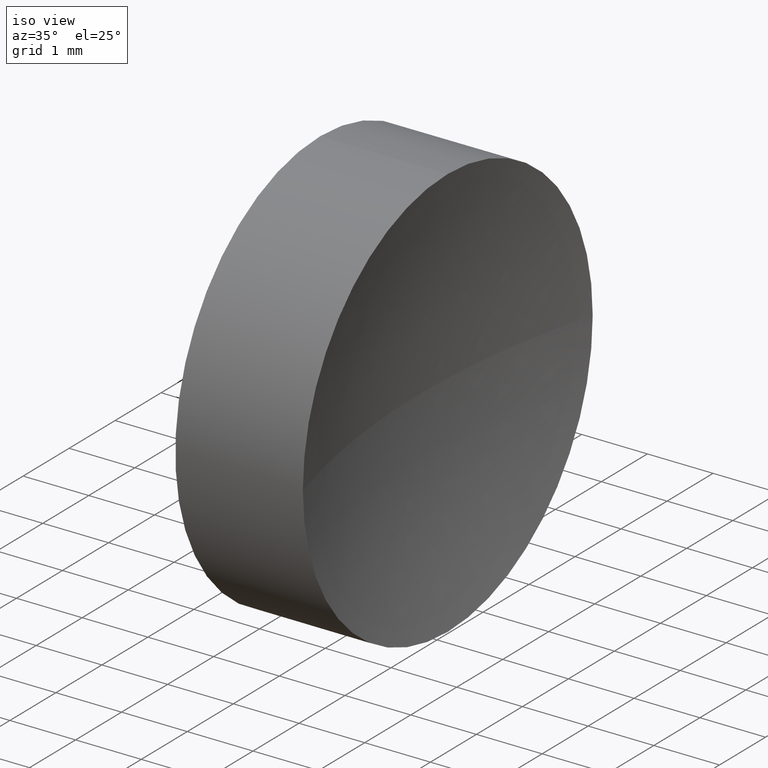
[diagram: clean part render]
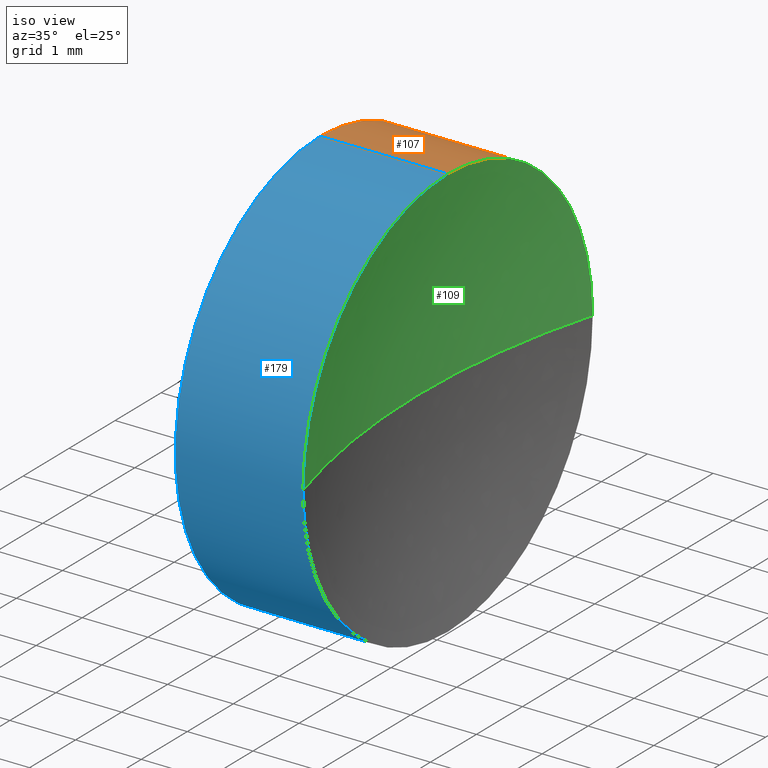
[diagram: same view with three faces highlighted in distinct colors, each labeled with its STEP entity id]
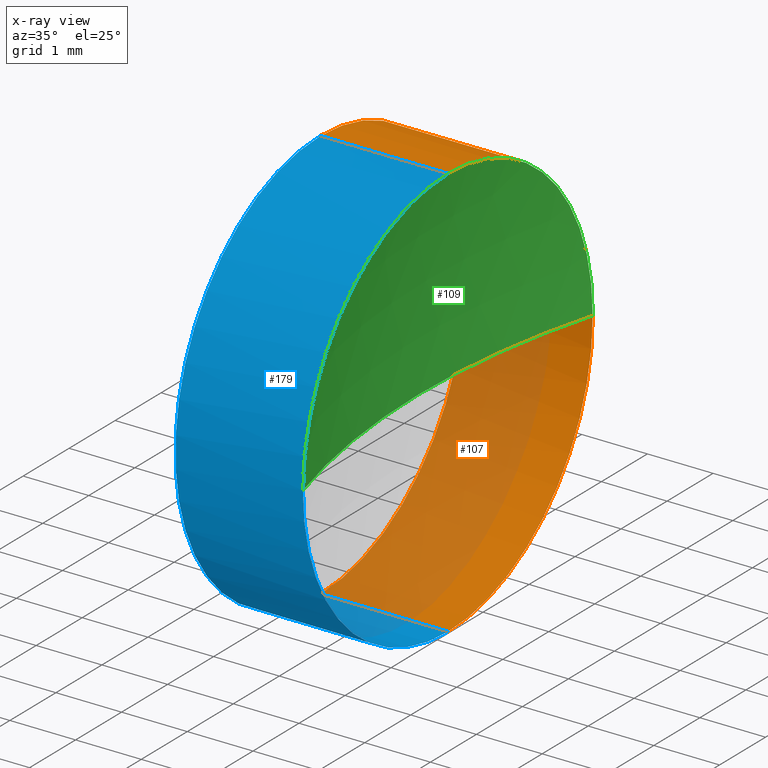
[diagram: x-ray of the same camera — body ghosted, the three highlighted faces saturated]
A machine part, iso view with three faces highlighted in distinct colors.
The next image is the same camera in x-ray (body ghosted, the three faces saturated) — at least one of them is partly hidden behind the body in this view.
Their STEP definitions:

[orange] entity #107 — the highlighted cylindrical surface (partial cylindrical patch) has radius 3.15 mm, axis along (-1, -0, -0).
#1 = CIRCLE ( 'NONE', #122, 3.149999999999998100 ) ;
#9 = VECTOR ( 'NONE', #172, 1000.000000000000000 ) ;
#10 = EDGE_CURVE ( 'NONE', #171, #154, #82, .T. ) ;
#14 = ORIENTED_EDGE ( 'NONE', *, *, #37, .T. ) ;
#19 = DIRECTION ( 'NONE',  ( -1.000000000000000000, -0.0000000000000000000, -0.0000000000000000000 ) ) ;
#23 = VERTEX_POINT ( 'NONE', #158 ) ;
#29 = DIRECTION ( 'NONE',  ( -1.000000000000000000, -0.0000000000000000000, -0.0000000000000000000 ) ) ;
#32 = DIRECTION ( 'NONE',  ( -1.000000000000000000, -0.0000000000000000000, -0.0000000000000000000 ) ) ;
#37 = EDGE_CURVE ( 'NONE', #55, #23, #132, .T. ) ;
#41 = ORIENTED_EDGE ( 'NONE', *, *, #10, .F. ) ;
#46 = CARTESIAN_POINT ( 'NONE',  ( 21.15647192244426100, 13.03112609140304000, 3.149999999999998100 ) ) ;
#50 = CARTESIAN_POINT ( 'NONE',  ( 24.14229572597543000, 13.03112609140304000, 0.0000000000000000000 ) ) ;
#55 = VERTEX_POINT ( 'NONE', #116 ) ;
#58 = AXIS2_PLACEMENT_3D ( 'NONE', #67, #80, #95 ) ;
#59 = DIRECTION ( 'NONE',  ( 0.0000000000000000000, 0.0000000000000000000, 1.000000000000000000 ) ) ;
#62 = CARTESIAN_POINT ( 'NONE',  ( 22.20087548928661300, 13.03112609140304000, 0.0000000000000000000 ) ) ;
#64 = EDGE_LOOP ( 'NONE', ( #14, #129, #130, #41, #165 ) ) ;
#66 = DIRECTION ( 'NONE',  ( 0.0000000000000000000, 0.0000000000000000000, 1.000000000000000000 ) ) ;
#67 = CARTESIAN_POINT ( 'NONE',  ( 21.15647192244426100, 13.03112609140304000, 0.0000000000000000000 ) ) ;
#69 = CYLINDRICAL_SURFACE ( 'NONE', #58, 3.149999999999998100 ) ;
#70 = LINE ( 'NONE', #177, #139 ) ;
#80 = DIRECTION ( 'NONE',  ( -1.000000000000000000, -0.0000000000000000000, -0.0000000000000000000 ) ) ;
#82 = LINE ( 'NONE', #46, #9 ) ;
#90 = VERTEX_POINT ( 'NONE', #178 ) ;
#95 = DIRECTION ( 'NONE',  ( 0.0000000000000000000, 0.0000000000000000000, 1.000000000000000000 ) ) ;
#103 = FACE_OUTER_BOUND ( 'NONE', #64, .T. ) ;
#107 = ADVANCED_FACE ( 'NONE', ( #103 ), #69, .T. ) ;
#116 = CARTESIAN_POINT ( 'NONE',  ( 24.14229572597543300, 16.18112609140303300, 3.857637417314144400E-016 ) ) ;
#121 = CARTESIAN_POINT ( 'NONE',  ( 24.14229572597543000, 13.03112609140304000, 3.149999999999998100 ) ) ;
#122 = AXIS2_PLACEMENT_3D ( 'NONE', #62, #169, #59 ) ;
#123 = CARTESIAN_POINT ( 'NONE',  ( 22.20087548928661300, 13.03112609140304000, 3.149999999999998100 ) ) ;
#125 = AXIS2_PLACEMENT_3D ( 'NONE', #50, #19, #66 ) ;
#129 = ORIENTED_EDGE ( 'NONE', *, *, #162, .T. ) ;
#130 = ORIENTED_EDGE ( 'NONE', *, *, #182, .F. ) ;
#132 = CIRCLE ( 'NONE', #156, 3.149999999999998100 ) ;
#133 = DIRECTION ( 'NONE',  ( 0.0000000000000000000, 0.0000000000000000000, 1.000000000000000000 ) ) ;
#139 = VECTOR ( 'NONE', #32, 1000.000000000000000 ) ;
#144 = EDGE_CURVE ( 'NONE', #171, #55, #152, .T. ) ;
#152 = CIRCLE ( 'NONE', #125, 3.149999999999998100 ) ;
#154 = VERTEX_POINT ( 'NONE', #123 ) ;
#156 = AXIS2_PLACEMENT_3D ( 'NONE', #173, #29, #133 ) ;
#158 = CARTESIAN_POINT ( 'NONE',  ( 24.14229572597543000, 13.03112609140304000, -3.149999999999998100 ) ) ;
#162 = EDGE_CURVE ( 'NONE', #23, #90, #70, .T. ) ;
#165 = ORIENTED_EDGE ( 'NONE', *, *, #144, .T. ) ;
#169 = DIRECTION ( 'NONE',  ( -1.000000000000000000, -0.0000000000000000000, -0.0000000000000000000 ) ) ;
#171 = VERTEX_POINT ( 'NONE', #121 ) ;
#172 = DIRECTION ( 'NONE',  ( -1.000000000000000000, -0.0000000000000000000, -0.0000000000000000000 ) ) ;
#173 = CARTESIAN_POINT ( 'NONE',  ( 24.14229572597543000, 13.03112609140304000, 0.0000000000000000000 ) ) ;
#177 = CARTESIAN_POINT ( 'NONE',  ( 21.15647192244426100, 13.03112609140304000, -3.149999999999998100 ) ) ;
#178 = CARTESIAN_POINT ( 'NONE',  ( 22.20087548928661300, 13.03112609140304000, -3.149999999999998100 ) ) ;
#182 = EDGE_CURVE ( 'NONE', #154, #90, #1, .T. ) ;

[blue] entity #179 — the highlighted cylindrical surface (partial cylindrical patch) has radius 3.15 mm, axis along (-1, -0, -0).
#4 = ORIENTED_EDGE ( 'NONE', *, *, #162, .F. ) ;
#6 = AXIS2_PLACEMENT_3D ( 'NONE', #34, #60, #25 ) ;
#9 = VECTOR ( 'NONE', #172, 1000.000000000000000 ) ;
#10 = EDGE_CURVE ( 'NONE', #171, #154, #82, .T. ) ;
#17 = CARTESIAN_POINT ( 'NONE',  ( 24.14229572597543300, 9.881126091403055900, 0.0000000000000000000 ) ) ;
#18 = DIRECTION ( 'NONE',  ( 0.0000000000000000000, 0.0000000000000000000, 1.000000000000000000 ) ) ;
#23 = VERTEX_POINT ( 'NONE', #158 ) ;
#25 = DIRECTION ( 'NONE',  ( 0.0000000000000000000, 0.0000000000000000000, 1.000000000000000000 ) ) ;
#26 = DIRECTION ( 'NONE',  ( 0.0000000000000000000, 0.0000000000000000000, 1.000000000000000000 ) ) ;
#32 = DIRECTION ( 'NONE',  ( -1.000000000000000000, -0.0000000000000000000, -0.0000000000000000000 ) ) ;
#34 = CARTESIAN_POINT ( 'NONE',  ( 24.14229572597543000, 13.03112609140304000, 0.0000000000000000000 ) ) ;
#35 = DIRECTION ( 'NONE',  ( 0.0000000000000000000, 0.0000000000000000000, 1.000000000000000000 ) ) ;
#46 = CARTESIAN_POINT ( 'NONE',  ( 21.15647192244426100, 13.03112609140304000, 3.149999999999998100 ) ) ;
#48 = ORIENTED_EDGE ( 'NONE', *, *, #153, .F. ) ;
#53 = AXIS2_PLACEMENT_3D ( 'NONE', #145, #155, #26 ) ;
#60 = DIRECTION ( 'NONE',  ( -1.000000000000000000, -0.0000000000000000000, -0.0000000000000000000 ) ) ;
#70 = LINE ( 'NONE', #177, #139 ) ;
#79 = ORIENTED_EDGE ( 'NONE', *, *, #10, .T. ) ;
#81 = CYLINDRICAL_SURFACE ( 'NONE', #53, 3.149999999999998100 ) ;
#82 = LINE ( 'NONE', #46, #9 ) ;
#85 = CIRCLE ( 'NONE', #112, 3.149999999999998100 ) ;
#88 = VERTEX_POINT ( 'NONE', #17 ) ;
#90 = VERTEX_POINT ( 'NONE', #178 ) ;
#101 = CIRCLE ( 'NONE', #6, 3.149999999999998100 ) ;
#104 = DIRECTION ( 'NONE',  ( -1.000000000000000000, -0.0000000000000000000, -0.0000000000000000000 ) ) ;
#106 = CARTESIAN_POINT ( 'NONE',  ( 22.20087548928661300, 13.03112609140304000, 0.0000000000000000000 ) ) ;
#112 = AXIS2_PLACEMENT_3D ( 'NONE', #174, #104, #18 ) ;
#117 = FACE_OUTER_BOUND ( 'NONE', #119, .T. ) ;
#119 = EDGE_LOOP ( 'NONE', ( #4, #160, #143, #79, #48 ) ) ;
#121 = CARTESIAN_POINT ( 'NONE',  ( 24.14229572597543000, 13.03112609140304000, 3.149999999999998100 ) ) ;
#123 = CARTESIAN_POINT ( 'NONE',  ( 22.20087548928661300, 13.03112609140304000, 3.149999999999998100 ) ) ;
#138 = DIRECTION ( 'NONE',  ( -1.000000000000000000, -0.0000000000000000000, -0.0000000000000000000 ) ) ;
#139 = VECTOR ( 'NONE', #32, 1000.000000000000000 ) ;
#143 = ORIENTED_EDGE ( 'NONE', *, *, #163, .T. ) ;
#145 = CARTESIAN_POINT ( 'NONE',  ( 21.15647192244426100, 13.03112609140304000, 0.0000000000000000000 ) ) ;
#148 = CIRCLE ( 'NONE', #181, 3.149999999999998100 ) ;
#150 = EDGE_CURVE ( 'NONE', #23, #88, #85, .T. ) ;
#153 = EDGE_CURVE ( 'NONE', #90, #154, #148, .T. ) ;
#154 = VERTEX_POINT ( 'NONE', #123 ) ;
#155 = DIRECTION ( 'NONE',  ( -1.000000000000000000, -0.0000000000000000000, -0.0000000000000000000 ) ) ;
#158 = CARTESIAN_POINT ( 'NONE',  ( 24.14229572597543000, 13.03112609140304000, -3.149999999999998100 ) ) ;
#160 = ORIENTED_EDGE ( 'NONE', *, *, #150, .T. ) ;
#162 = EDGE_CURVE ( 'NONE', #23, #90, #70, .T. ) ;
#163 = EDGE_CURVE ( 'NONE', #88, #171, #101, .T. ) ;
#171 = VERTEX_POINT ( 'NONE', #121 ) ;
#172 = DIRECTION ( 'NONE',  ( -1.000000000000000000, -0.0000000000000000000, -0.0000000000000000000 ) ) ;
#174 = CARTESIAN_POINT ( 'NONE',  ( 24.14229572597543000, 13.03112609140304000, 0.0000000000000000000 ) ) ;
#177 = CARTESIAN_POINT ( 'NONE',  ( 21.15647192244426100, 13.03112609140304000, -3.149999999999998100 ) ) ;
#178 = CARTESIAN_POINT ( 'NONE',  ( 22.20087548928661300, 13.03112609140304000, -3.149999999999998100 ) ) ;
#179 = ADVANCED_FACE ( 'NONE', ( #117 ), #81, .T. ) ;
#181 = AXIS2_PLACEMENT_3D ( 'NONE', #106, #138, #35 ) ;

[green] entity #109 — the highlighted spherical surface has radius 11.46 mm.
#2 = DIRECTION ( 'NONE',  ( 0.0000000000000000000, 0.0000000000000000000, -1.000000000000000000 ) ) ;
#5 = DIRECTION ( 'NONE',  ( 0.0000000000000000000, 0.0000000000000000000, 1.000000000000000000 ) ) ;
#6 = AXIS2_PLACEMENT_3D ( 'NONE', #34, #60, #25 ) ;
#7 = DIRECTION ( 'NONE',  ( 0.0000000000000000000, -1.000000000000000000, 0.0000000000000000000 ) ) ;
#12 = EDGE_CURVE ( 'NONE', #88, #78, #30, .T. ) ;
#17 = CARTESIAN_POINT ( 'NONE',  ( 24.14229572597543300, 9.881126091403055900, 0.0000000000000000000 ) ) ;
#19 = DIRECTION ( 'NONE',  ( -1.000000000000000000, -0.0000000000000000000, -0.0000000000000000000 ) ) ;
#20 = EDGE_CURVE ( 'NONE', #55, #78, #56, .T. ) ;
#21 = EDGE_LOOP ( 'NONE', ( #159, #93, #86, #47 ) ) ;
#25 = DIRECTION ( 'NONE',  ( 0.0000000000000000000, 0.0000000000000000000, 1.000000000000000000 ) ) ;
#27 = CARTESIAN_POINT ( 'NONE',  ( 35.16087548926616100, 13.03112609140305100, 0.0000000000000000000 ) ) ;
#30 = CIRCLE ( 'NONE', #45, 11.45999999999999700 ) ;
#31 = CARTESIAN_POINT ( 'NONE',  ( 35.16087548926616100, 13.03112609140305100, 0.0000000000000000000 ) ) ;
#34 = CARTESIAN_POINT ( 'NONE',  ( 24.14229572597543000, 13.03112609140304000, 0.0000000000000000000 ) ) ;
#40 = AXIS2_PLACEMENT_3D ( 'NONE', #120, #5, #7 ) ;
#45 = AXIS2_PLACEMENT_3D ( 'NONE', #31, #2, #76 ) ;
#47 = ORIENTED_EDGE ( 'NONE', *, *, #12, .T. ) ;
#50 = CARTESIAN_POINT ( 'NONE',  ( 24.14229572597543000, 13.03112609140304000, 0.0000000000000000000 ) ) ;
#55 = VERTEX_POINT ( 'NONE', #116 ) ;
#56 = CIRCLE ( 'NONE', #151, 11.45999999999999700 ) ;
#60 = DIRECTION ( 'NONE',  ( -1.000000000000000000, -0.0000000000000000000, -0.0000000000000000000 ) ) ;
#66 = DIRECTION ( 'NONE',  ( 0.0000000000000000000, 0.0000000000000000000, 1.000000000000000000 ) ) ;
#68 = CARTESIAN_POINT ( 'NONE',  ( 23.70087548926616700, 13.03112609140305100, 0.0000000000000000000 ) ) ;
#76 = DIRECTION ( 'NONE',  ( -1.000000000000000000, 0.0000000000000000000, 0.0000000000000000000 ) ) ;
#78 = VERTEX_POINT ( 'NONE', #68 ) ;
#86 = ORIENTED_EDGE ( 'NONE', *, *, #163, .F. ) ;
#88 = VERTEX_POINT ( 'NONE', #17 ) ;
#92 = DIRECTION ( 'NONE',  ( 0.0000000000000000000, -1.224646799147353200E-016, 1.000000000000000000 ) ) ;
#93 = ORIENTED_EDGE ( 'NONE', *, *, #144, .F. ) ;
#101 = CIRCLE ( 'NONE', #6, 3.149999999999998100 ) ;
#109 = ADVANCED_FACE ( 'NONE', ( #140 ), #136, .F. ) ;
#116 = CARTESIAN_POINT ( 'NONE',  ( 24.14229572597543300, 16.18112609140303300, 3.857637417314144400E-016 ) ) ;
#120 = CARTESIAN_POINT ( 'NONE',  ( 35.16087548926616100, 13.03112609140305100, 0.0000000000000000000 ) ) ;
#121 = CARTESIAN_POINT ( 'NONE',  ( 24.14229572597543000, 13.03112609140304000, 3.149999999999998100 ) ) ;
#125 = AXIS2_PLACEMENT_3D ( 'NONE', #50, #19, #66 ) ;
#136 = SPHERICAL_SURFACE ( 'NONE', #40, 11.45999999999999700 ) ;
#140 = FACE_OUTER_BOUND ( 'NONE', #21, .T. ) ;
#144 = EDGE_CURVE ( 'NONE', #171, #55, #152, .T. ) ;
#147 = DIRECTION ( 'NONE',  ( 0.0000000000000000000, -1.000000000000000000, -1.224646799147353200E-016 ) ) ;
#151 = AXIS2_PLACEMENT_3D ( 'NONE', #27, #92, #147 ) ;
#152 = CIRCLE ( 'NONE', #125, 3.149999999999998100 ) ;
#159 = ORIENTED_EDGE ( 'NONE', *, *, #20, .F. ) ;
#163 = EDGE_CURVE ( 'NONE', #88, #171, #101, .T. ) ;
#171 = VERTEX_POINT ( 'NONE', #121 ) ;